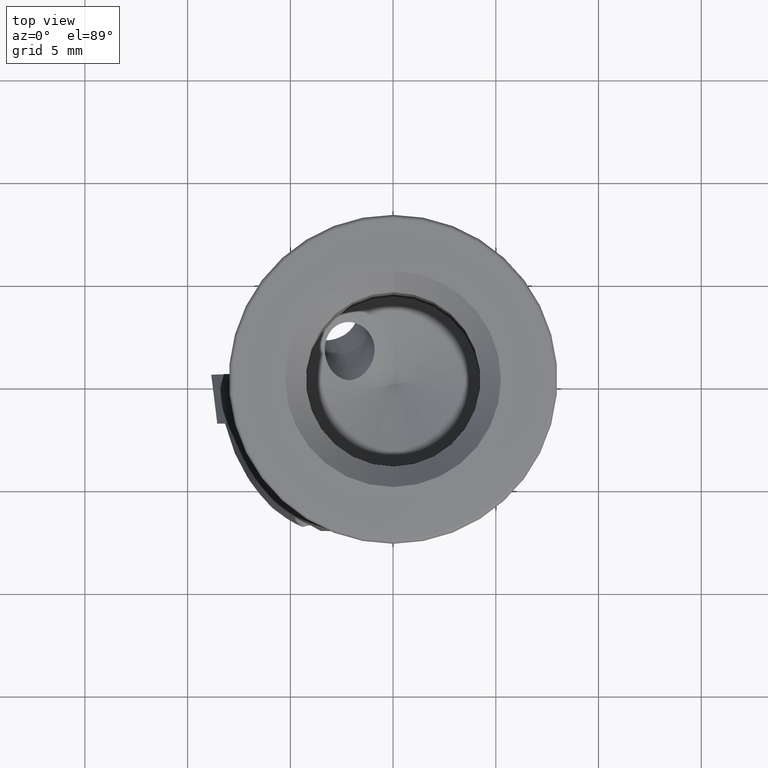
[diagram: clean part render]
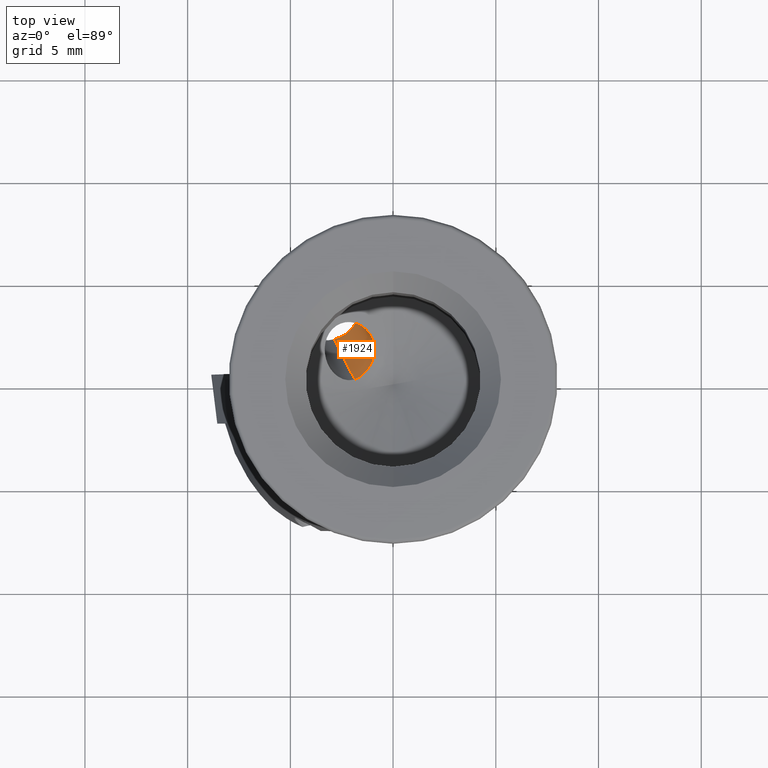
[diagram: same view with one face highlighted and labeled with its STEP entity id]
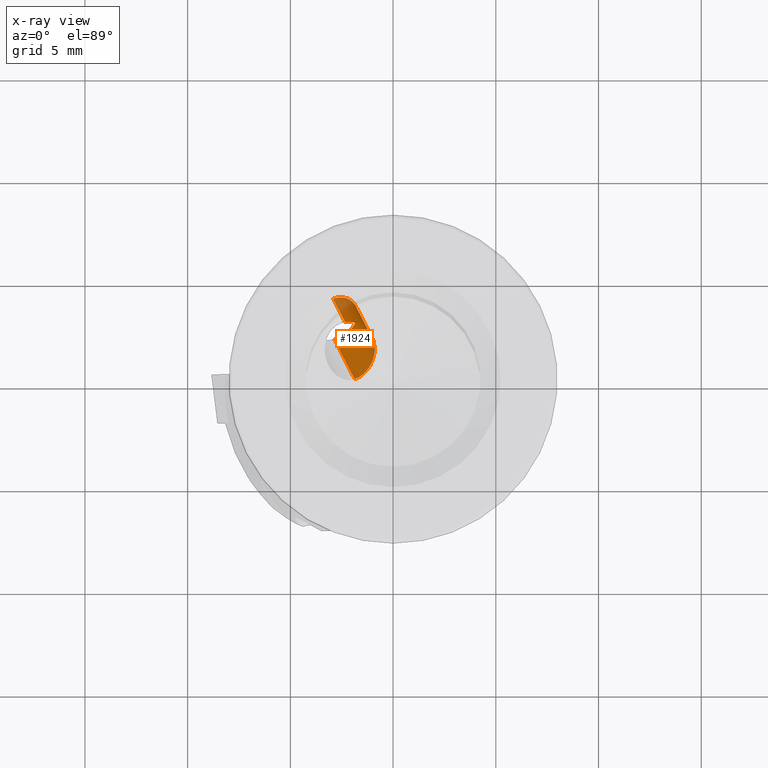
[diagram: x-ray of the same camera — body ghosted, the highlighted face saturated]
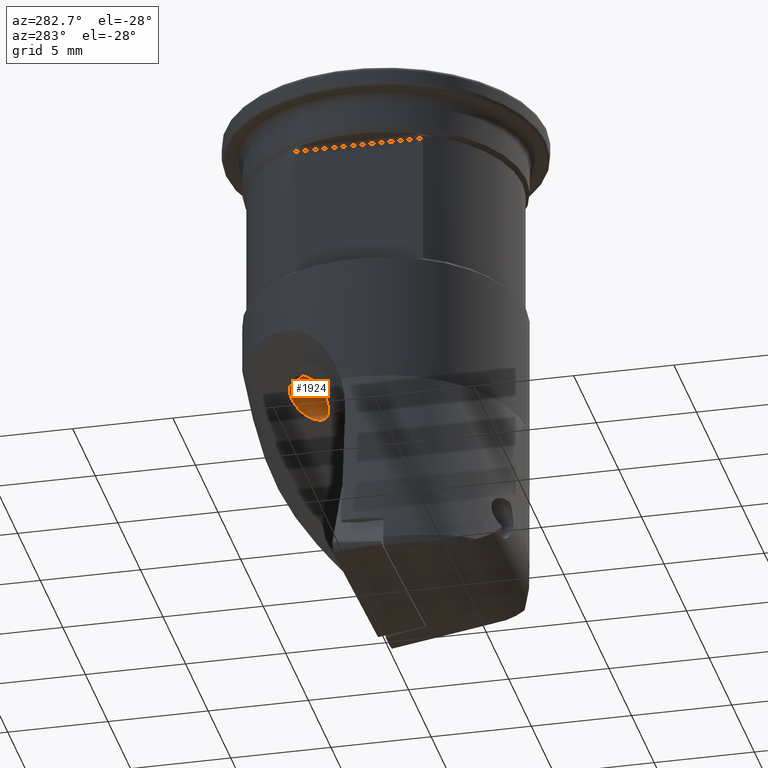
[diagram: same view with one face highlighted and labeled with its STEP entity id]
A machine part, top view. The second image highlights one B-rep face of the part: STEP entity #1924.
The next image is the same camera in x-ray: the body ghosted, the highlighted face saturated — about 11% of this face is hidden behind the body in this view.
A second angle (auxiliary view) of the same face is appended — the face is thin or edge-on in the first view.
In plain terms, the highlighted cylindrical surface (edge-blend (fillet) strip) has radius 1.25 mm, axis along (0.3237, -0.6428, 0.6943).
Its self-contained STEP definition (entity closure, byte-faithful):
#890=EDGE_CURVE('NONE',#1108,#1496,#2220,.F.);
#988=VERTEX_POINT('NONE',#2327);
#1002=VERTEX_POINT('NONE',#2342);
#1108=VERTEX_POINT('NONE',#2461);
#1154=EDGE_CURVE('NONE',#1002,#988,#2511,.T.);
#1374=EDGE_CURVE('NONE',#1002,#1108,#2765,.F.);
#1406=EDGE_CURVE('NONE',#1496,#1758,#2801,.T.);
#1496=VERTEX_POINT('NONE',#2898);
#1556=EDGE_CURVE('NONE',#988,#1758,#2966,.F.);
#1758=VERTEX_POINT('NONE',#3187);
#1924=ADVANCED_FACE('NONE',(#3367),#3368,.F.);
#2220=B_SPLINE_CURVE_WITH_KNOTS('',3,(#3804,#3805,#3806,#3807,#3808,#3809,#3810,#3811,#3812,#3813,#3814,#3815),.UNSPECIFIED.,.F.,.F.,(4,2,2,2,2,4),(0.418127527761187,0.471362272912532,0.942724545825065,1.41500780110349,1.88729105638192,2.18581464520765),.UNSPECIFIED.);
#2327=CARTESIAN_POINT('',(-2.33755238249974,2.99635168494367,-13.1636776791268));
#2342=CARTESIAN_POINT('',(-2.92782786969962,4.16833119563093,-14.4295275464341));
#2461=CARTESIAN_POINT('',(-1.73644724220974,3.40000000000003,-15.6295922695099));
#2511=LINE('',#4579,#4580);
#2765=ELLIPSE('',#5355,1.27254535176408,1.25);
#2801=LINE('',#5415,#5416);
#2898=CARTESIAN_POINT('',(-2.87040432678669,2.2198413617824,-16.0048215256521));
#2966=B_SPLINE_CURVE_WITH_KNOTS('',3,(#5706,#5707,#5708,#5709,#5710,#5711,#5712,#5713,#5714,#5715,#5716,#5717,#5718,#5719,#5720,#5721,#5722,#5723,#5724,#5725,#5726,#5727,#5728,#5729,#5730,#5731),.UNSPECIFIED.,.F.,.F.,(4,2,2,2,2,2,2,2,2,2,2,2,4),(0.355897149562513,0.624571276387406,0.976733588184464,1.32889589998152,1.68708823868041,2.0452805773793,2.40347291607819,2.76166525477708,3.10075596208245,3.43984666938782,3.77893737669319,4.11802808399856,4.41406695167446),.UNSPECIFIED.);
#3187=CARTESIAN_POINT('',(-1.8705831237232,0.234717483608056,-13.8606980364103));
#3367=FACE_OUTER_BOUND('',#6849,.T.);
#3368=CYLINDRICAL_SURFACE('',#6850,1.25);
#3804=CARTESIAN_POINT('',(-2.87040432678669,2.2198413617824,-16.0048215256521));
#3805=CARTESIAN_POINT('',(-2.85283628937062,2.22444860314642,-16.0097977865987));
#3806=CARTESIAN_POINT('',(-2.8352473252676,2.22935312781275,-16.0144693039444));
#3807=CARTESIAN_POINT('',(-2.66202073489248,2.28056315510815,-16.0574445167957));
#3808=CARTESIAN_POINT('',(-2.50716108378203,2.35073033923306,-16.0704890461559));
#3809=CARTESIAN_POINT('',(-2.24101366080668,2.51760749470057,-16.0544164299868));
#3810=CARTESIAN_POINT('',(-2.11209103844121,2.62554368472025,-16.0241740873411));
#3811=CARTESIAN_POINT('',(-1.90682410947397,2.87031805896029,-15.9258539698742));
#3812=CARTESIAN_POINT('',(-1.83058814899869,3.00735486380641,-15.858044789074));
#3813=CARTESIAN_POINT('',(-1.7589153857156,3.22303541132937,-15.7382081230425));
#3814=CARTESIAN_POINT('',(-1.74129830098839,3.31154114120144,-15.6857640819506));
#3815=CARTESIAN_POINT('',(-1.73644724220974,3.40000000000003,-15.6295922695099));
#4579=CARTESIAN_POINT('',(-1.83231535066687,1.99321423101078,-12.0801933678635));
#4580=VECTOR('',#7568,1000.0);
#5355=AXIS2_PLACEMENT_3D('',#7903,#7904,#7905);
#5415=CARTESIAN_POINT('',(-1.83231535066687,0.158737628584559,-13.7786325322585));
#5416=VECTOR('',#7969,1000.0);
#5706=CARTESIAN_POINT('',(-1.8705831237232,0.234717483608056,-13.8606980364103));
#5707=CARTESIAN_POINT('',(-1.7835778021951,0.262637032445721,-13.8908538171805));
#5708=CARTESIAN_POINT('',(-1.70056770311386,0.303839214783431,-13.918508622101));
#5709=CARTESIAN_POINT('',(-1.53179079181259,0.411820553560553,-13.970285220964));
#5710=CARTESIAN_POINT('',(-1.43642709389338,0.493364635402002,-13.9957786539376));
#5711=CARTESIAN_POINT('',(-1.26580991396888,0.678863885752253,-14.02587953622));
#5712=CARTESIAN_POINT('',(-1.19028423048743,0.782627956504224,-14.0301197161514));
#5713=CARTESIAN_POINT('',(-1.06897445364732,0.98569437222968,-14.0193935844682));
#5714=CARTESIAN_POINT('',(-1.01670593222007,1.09585531800564,-14.0040616727253));
#5715=CARTESIAN_POINT('',(-0.938727208585796,1.3242764868092,-13.9572314455924));
#5716=CARTESIAN_POINT('',(-0.913137787277808,1.44262208846425,-13.9259488252055));
#5717=CARTESIAN_POINT('',(-0.892993014649762,1.67936710750069,-13.8550344234905));
#5718=CARTESIAN_POINT('',(-0.898383394251217,1.79809536542268,-13.815370175222));
#5719=CARTESIAN_POINT('',(-0.938726990164873,2.02735197062095,-13.7337949522314));
#5720=CARTESIAN_POINT('',(-0.973654568952605,2.13787370077924,-13.6918527068844));
#5721=CARTESIAN_POINT('',(-1.06417940931814,2.33664098607335,-13.6123577577734));
#5722=CARTESIAN_POINT('',(-1.12090007849185,2.43086415227677,-13.5726213694232));
#5723=CARTESIAN_POINT('',(-1.25726071551569,2.60454686942299,-13.4942651916293));
#5724=CARTESIAN_POINT('',(-1.33687425294805,2.68402091334321,-13.4556315345658));
#5725=CARTESIAN_POINT('',(-1.51360539330962,2.82028875737402,-13.3820090574543));
#5726=CARTESIAN_POINT('',(-1.6108515386168,2.87719750394354,-13.346950657577));
#5727=CARTESIAN_POINT('',(-1.81609010587227,2.96257168951449,-13.2823433344599));
#5728=CARTESIAN_POINT('',(-1.92408186071824,2.99103302748251,-13.2527868730809));
#5729=CARTESIAN_POINT('',(-2.12877195906109,3.01433028374021,-13.2039989073093));
#5730=CARTESIAN_POINT('',(-2.23408066633598,3.01329665541007,-13.1819798665122));
#5731=CARTESIAN_POINT('',(-2.33755238249974,2.99635168494367,-13.1636776791268));
#6849=EDGE_LOOP('',(#8574,#8575,#8576,#8577,#8578));
#6850=AXIS2_PLACEMENT_3D('',#8579,#8580,#8581);
#7568=DIRECTION('',(0.323744370967065,-0.642787609686541,0.694272044014883));
#7903=CARTESIAN_POINT('',(-2.86906460012468,3.13441966400886,-15.1527288903563));
#7904=DIRECTION('',(0.433012701892222,-0.499999999999995,0.750000000000002));
#7905=DIRECTION('',(-0.542132098655838,-0.809200545586556,-0.226466917295745));
#7969=DIRECTION('',(0.323744370967065,-0.642787609686541,0.694272044014883));
#8574=ORIENTED_EDGE('',*,*,#1154,.F.);
#8575=ORIENTED_EDGE('',*,*,#1374,.T.);
#8576=ORIENTED_EDGE('',*,*,#890,.T.);
#8577=ORIENTED_EDGE('',*,*,#1406,.T.);
#8578=ORIENTED_EDGE('',*,*,#1556,.F.);
#8579=CARTESIAN_POINT('',(-1.83231535066687,1.07597592979767,-12.929412950061));
#8580=DIRECTION('',(0.323744370967065,-0.642787609686541,0.694272044014883));
#8581=DIRECTION('',(-8.31995234489131E-017,-0.733790640970489,-0.679375665757995));